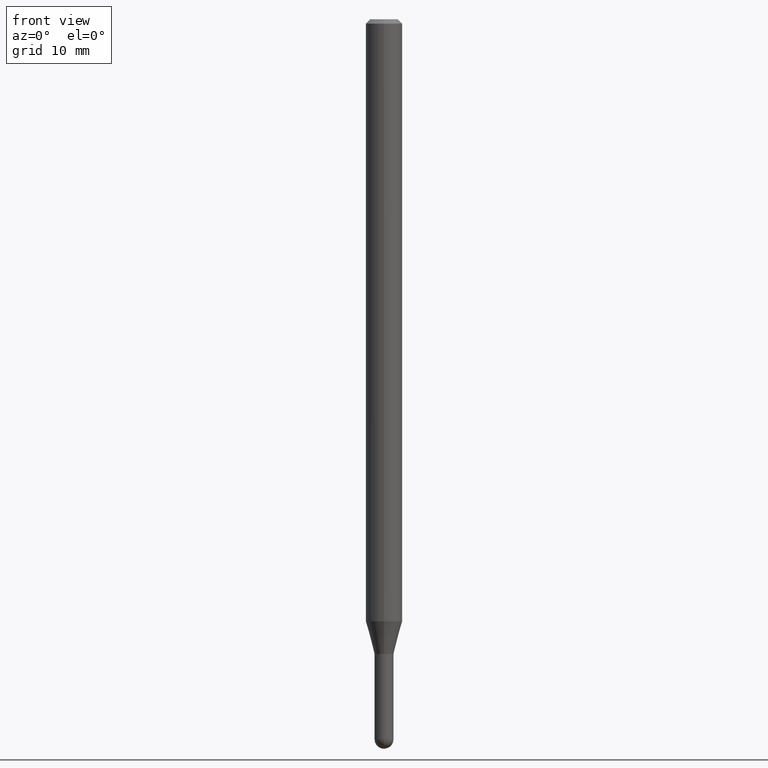
[diagram: clean part render]
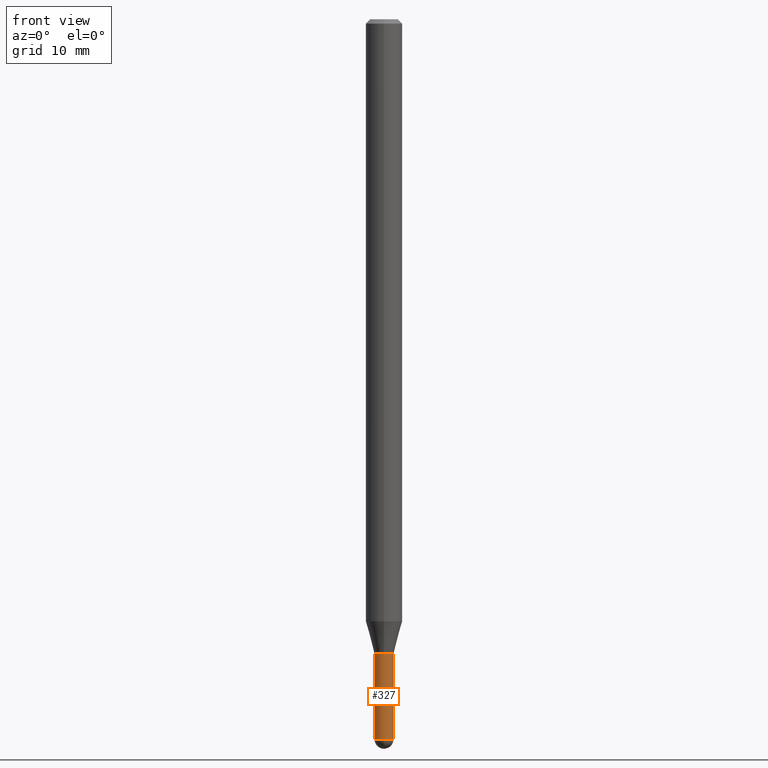
[diagram: same view with one face highlighted and labeled with its STEP entity id]
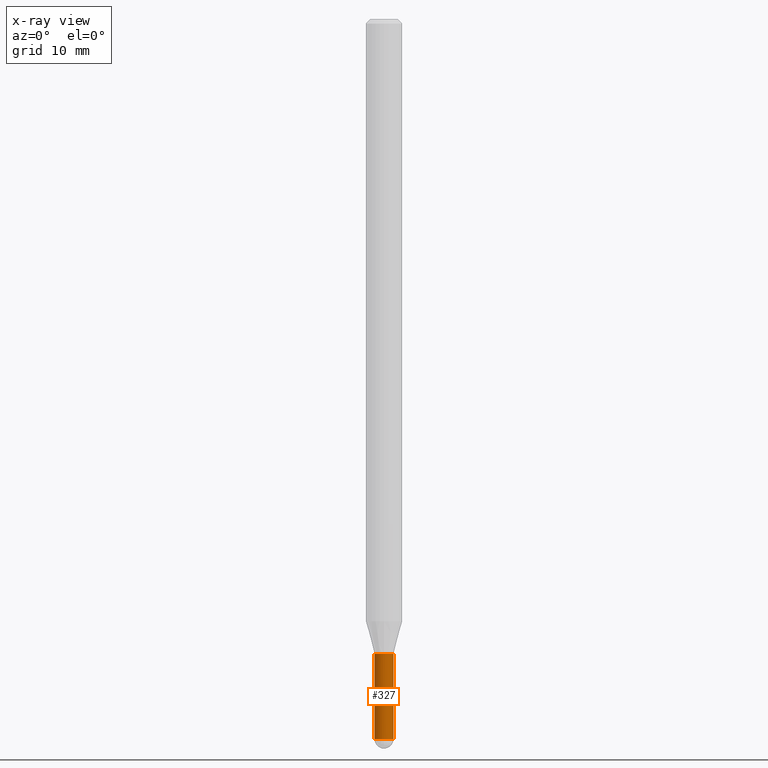
[diagram: x-ray of the same camera — body ghosted, the highlighted face saturated]
A machine part, front view. The second image highlights one B-rep face of the part: STEP entity #327.
The next image is the same camera in x-ray: the body ghosted, the highlighted face saturated — about 0% of this face is hidden behind the body in this view.
In plain terms, the highlighted cylindrical surface (edge-blend (fillet) strip) has radius 0.8255 mm, axis along (-0, 0, 1).
Its self-contained STEP definition (entity closure, byte-faithful):
#15 = VERTEX_POINT ( 'NONE', #16 ) ;
#16 = CARTESIAN_POINT ( 'NONE',  ( -2.309263891219727135E-16, -0.03250000000000868861, -2.467499999999999805 ) ) ;
#17 = DIRECTION ( 'NONE',  ( -2.445468806185136597E-29, 3.491481338843145583E-15, 1.000000000000000000 ) ) ;
#40 = LINE ( 'NONE', #159, #85 ) ;
#42 = ORIENTED_EDGE ( 'NONE', *, *, #487, .T. ) ;
#43 = CIRCLE ( 'NONE', #434, 0.03250000000000000111 ) ;
#46 = AXIS2_PLACEMENT_3D ( 'NONE', #192, #265, #302 ) ;
#64 = DIRECTION ( 'NONE',  ( 1.000000000000000000, -6.982962677686267499E-15, 4.876176775795936353E-29 ) ) ;
#83 = ORIENTED_EDGE ( 'NONE', *, *, #511, .T. ) ;
#85 = VECTOR ( 'NONE', #364, 39.37007874015748143 ) ;
#89 = ORIENTED_EDGE ( 'NONE', *, *, #473, .T. ) ;
#93 = CARTESIAN_POINT ( 'NONE',  ( -0.03250000000000000111, -7.873674668667618619E-15, -2.175000000000000266 ) ) ;
#95 = CIRCLE ( 'NONE', #46, 0.03250000000000000111 ) ;
#99 = VERTEX_POINT ( 'NONE', #266 ) ;
#105 = EDGE_LOOP ( 'NONE', ( #433, #89, #42, #83, #486 ) ) ;
#135 = AXIS2_PLACEMENT_3D ( 'NONE', #391, #351, #64 ) ;
#141 = VERTEX_POINT ( 'NONE', #350 ) ;
#145 = AXIS2_PLACEMENT_3D ( 'NONE', #294, #17, #333 ) ;
#158 = CARTESIAN_POINT ( 'NONE',  ( 6.034194279261823970E-29, -8.615230203595461689E-15, -2.467499999999999805 ) ) ;
#159 = CARTESIAN_POINT ( 'NONE',  ( -0.03250000000000000111, 2.309263891220325683E-16, -1.598653904332844407E-30 ) ) ;
#183 = DIRECTION ( 'NONE',  ( -2.445468806185136877E-29, 3.491481338843145188E-15, 1.000000000000000000 ) ) ;
#189 = CYLINDRICAL_SURFACE ( 'NONE', #135, 0.03250000000000000111 ) ;
#192 = CARTESIAN_POINT ( 'NONE',  ( 5.318894653452672995E-29, -7.593971911983841869E-15, -2.175000000000000266 ) ) ;
#217 = VECTOR ( 'NONE', #183, 39.37007874015748143 ) ;
#221 = EDGE_CURVE ( 'NONE', #411, #252, #40, .T. ) ;
#252 = VERTEX_POINT ( 'NONE', #93 ) ;
#258 = CARTESIAN_POINT ( 'NONE',  ( 0.03250000000000000111, -2.269462870248036977E-16, 1.584757452133679343E-30 ) ) ;
#262 = FACE_OUTER_BOUND ( 'NONE', #105, .T. ) ;
#265 = DIRECTION ( 'NONE',  ( -2.445468806185136597E-29, 3.491481338843145583E-15, 1.000000000000000000 ) ) ;
#266 = CARTESIAN_POINT ( 'NONE',  ( 0.03250000000000000111, -7.820918199008645222E-15, -2.175000000000000266 ) ) ;
#268 = EDGE_CURVE ( 'NONE', #252, #99, #95, .T. ) ;
#294 = CARTESIAN_POINT ( 'NONE',  ( 6.034194279261823970E-29, -8.615230203595461689E-15, -2.467499999999999805 ) ) ;
#302 = DIRECTION ( 'NONE',  ( 1.000000000000000000, -6.982962677686258033E-15, 0.000000000000000000 ) ) ;
#327 = ADVANCED_FACE ( 'NONE', ( #262 ), #189, .T. ) ;
#333 = DIRECTION ( 'NONE',  ( 1.000000000000000000, -6.982962677686287221E-15, 0.000000000000000000 ) ) ;
#350 = CARTESIAN_POINT ( 'NONE',  ( 0.03250000000000000111, -8.331547344814454343E-15, -2.467499999999999805 ) ) ;
#351 = DIRECTION ( 'NONE',  ( -2.445468806185136597E-29, 3.491481338843145583E-15, 1.000000000000000000 ) ) ;
#364 = DIRECTION ( 'NONE',  ( -2.445468806185136877E-29, 3.491481338843145188E-15, 1.000000000000000000 ) ) ;
#391 = CARTESIAN_POINT ( 'NONE',  ( 0.000000000000000000, 0.000000000000000000, 0.000000000000000000 ) ) ;
#393 = CARTESIAN_POINT ( 'NONE',  ( -0.03250000000000000111, -7.873674668667618619E-15, -2.467499999999999805 ) ) ;
#411 = VERTEX_POINT ( 'NONE', #393 ) ;
#433 = ORIENTED_EDGE ( 'NONE', *, *, #221, .F. ) ;
#434 = AXIS2_PLACEMENT_3D ( 'NONE', #158, #495, #492 ) ;
#451 = LINE ( 'NONE', #258, #217 ) ;
#473 = EDGE_CURVE ( 'NONE', #411, #15, #43, .T. ) ;
#474 = CIRCLE ( 'NONE', #145, 0.03250000000000000111 ) ;
#486 = ORIENTED_EDGE ( 'NONE', *, *, #268, .F. ) ;
#487 = EDGE_CURVE ( 'NONE', #15, #141, #474, .T. ) ;
#492 = DIRECTION ( 'NONE',  ( 1.000000000000000000, -6.982962677686287221E-15, 0.000000000000000000 ) ) ;
#495 = DIRECTION ( 'NONE',  ( -2.445468806185136597E-29, 3.491481338843145583E-15, 1.000000000000000000 ) ) ;
#511 = EDGE_CURVE ( 'NONE', #141, #99, #451, .T. ) ;